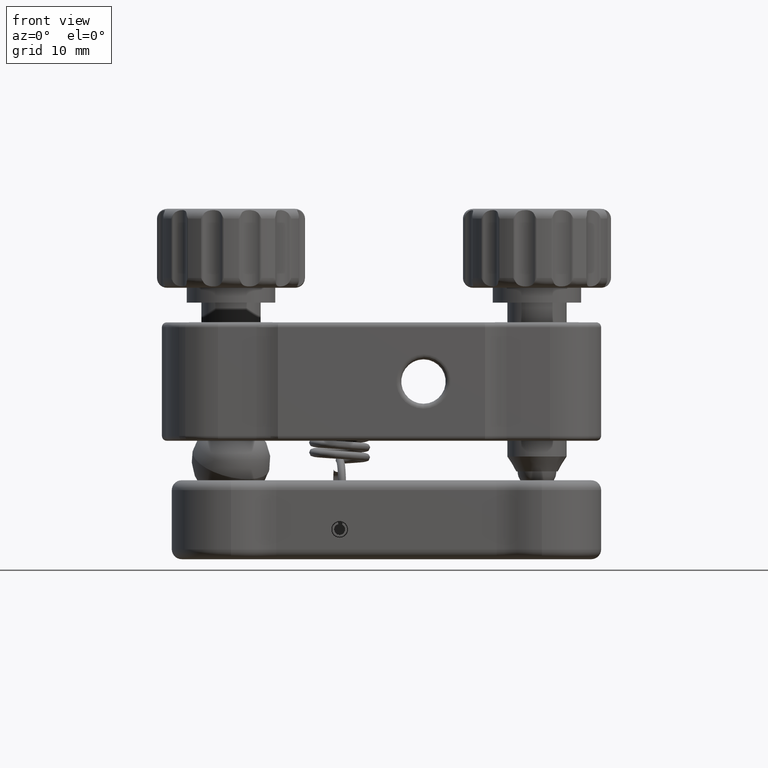
[diagram: clean part render]
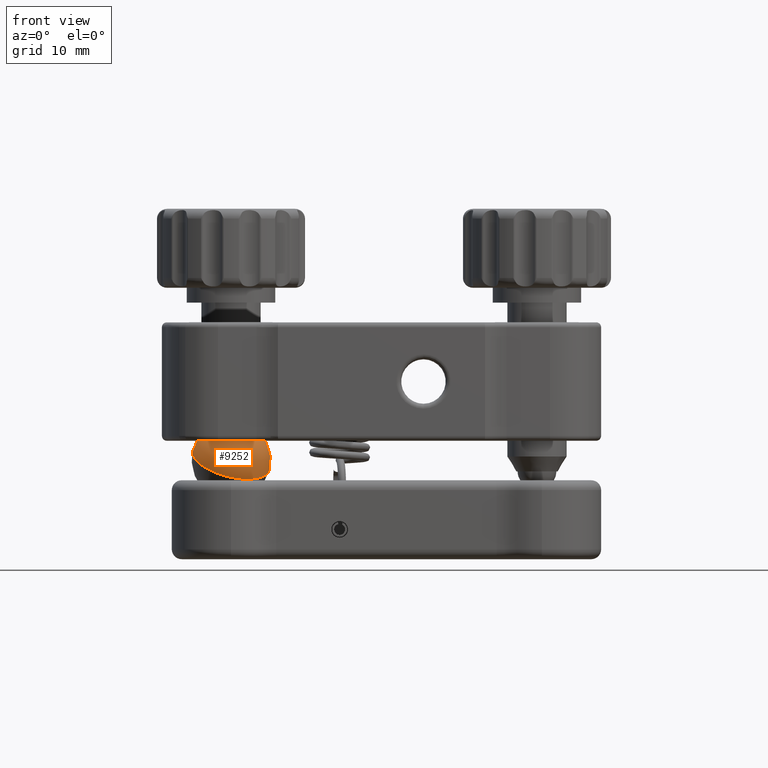
[diagram: same view with one face highlighted and labeled with its STEP entity id]
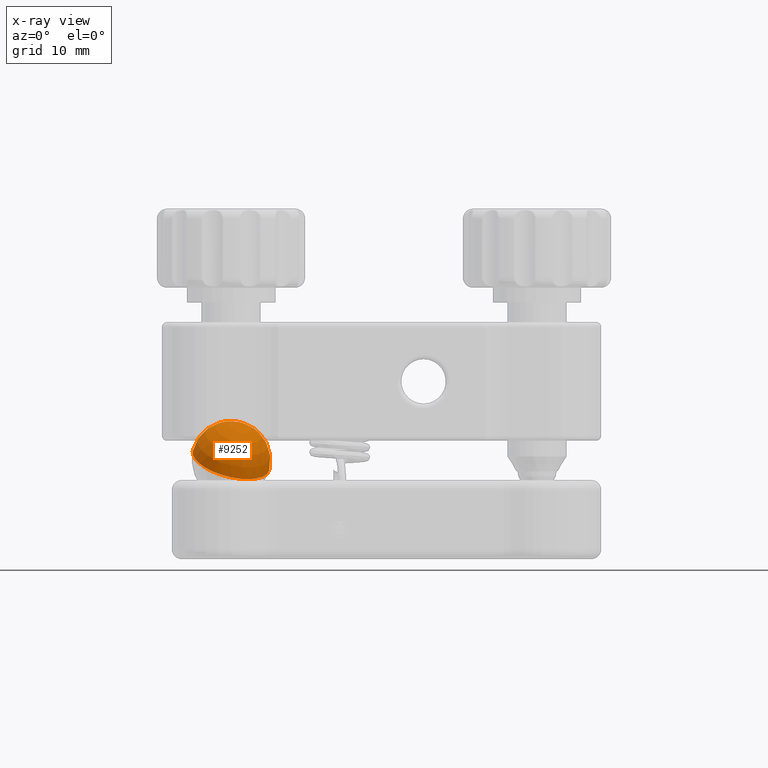
[diagram: x-ray of the same camera — body ghosted, the highlighted face saturated]
A machine part, front view. The second image highlights one B-rep face of the part: STEP entity #9252.
The next image is the same camera in x-ray: the body ghosted, the highlighted face saturated — about 0% of this face is hidden behind the body in this view.
In plain terms, the highlighted spherical surface has radius 4 mm.
Its self-contained STEP definition (entity closure, byte-faithful):
#17 = SPHERICAL_SURFACE ( 'NONE', #18542, 4.000000000000000000 ) ;
#311 = CARTESIAN_POINT ( 'NONE',  ( 3.165897450188620800, 2.421946303778572700, -7.666429263120274000 ) ) ;
#384 = CARTESIAN_POINT ( 'NONE',  ( -3.165897450188621700, -2.421946303778568200, -8.333570736879721600 ) ) ;
#971 = EDGE_LOOP ( 'NONE', ( #2908, #8788 ) ) ;
#1999 = VERTEX_POINT ( 'NONE', #384 ) ;
#2252 = EDGE_CURVE ( 'NONE', #9623, #1999, #10841, .T. ) ;
#2908 = ORIENTED_EDGE ( 'NONE', *, *, #14095, .F. ) ;
#3837 = DIRECTION ( 'NONE',  ( 0.0000000000000000000, 0.9033420518695984800, 0.4289208986794927300 ) ) ;
#4169 = CARTESIAN_POINT ( 'NONE',  ( -2.904264217898182300E-016, 2.215838190017249700E-015, -7.999999999999998200 ) ) ;
#5728 = DIRECTION ( 'NONE',  ( 0.2268752772485426700, -0.4177362804302509600, 0.8797863425773873000 ) ) ;
#5869 = DIRECTION ( 'NONE',  ( 0.0000000000000000000, -0.9033420518695985900, -0.4289208986794925700 ) ) ;
#6892 = AXIS2_PLACEMENT_3D ( 'NONE', #4169, #5728, #5869 ) ;
#7916 = FACE_OUTER_BOUND ( 'NONE', #971, .T. ) ;
#8788 = ORIENTED_EDGE ( 'NONE', *, *, #2252, .T. ) ;
#9252 = ADVANCED_FACE ( 'NONE', ( #7916 ), #17, .T. ) ;
#9349 = AXIS2_PLACEMENT_3D ( 'NONE', #19927, #10201, #3837 ) ;
#9623 = VERTEX_POINT ( 'NONE', #311 ) ;
#10201 = DIRECTION ( 'NONE',  ( -0.2268752772485427800, 0.4177362804302510700, -0.8797863425773873000 ) ) ;
#10841 = CIRCLE ( 'NONE', #6892, 3.999999999999999600 ) ;
#11161 = CIRCLE ( 'NONE', #9349, 4.000000000000000000 ) ;
#12303 = DIRECTION ( 'NONE',  ( -0.5675349698511679100, 0.6774085963162369600, 0.4679974910540649600 ) ) ;
#14095 = EDGE_CURVE ( 'NONE', #9623, #1999, #11161, .T. ) ;
#15646 = CARTESIAN_POINT ( 'NONE',  ( -2.904264217898182300E-016, 2.215838190017249700E-015, -7.999999999999998200 ) ) ;
#17422 = DIRECTION ( 'NONE',  ( -0.2268752772485427000, 0.4177362804302510200, -0.8797863425773873000 ) ) ;
#18542 = AXIS2_PLACEMENT_3D ( 'NONE', #15646, #17422, #12303 ) ;
#19927 = CARTESIAN_POINT ( 'NONE',  ( -2.904264217898182300E-016, 2.215838190017249700E-015, -7.999999999999998200 ) ) ;